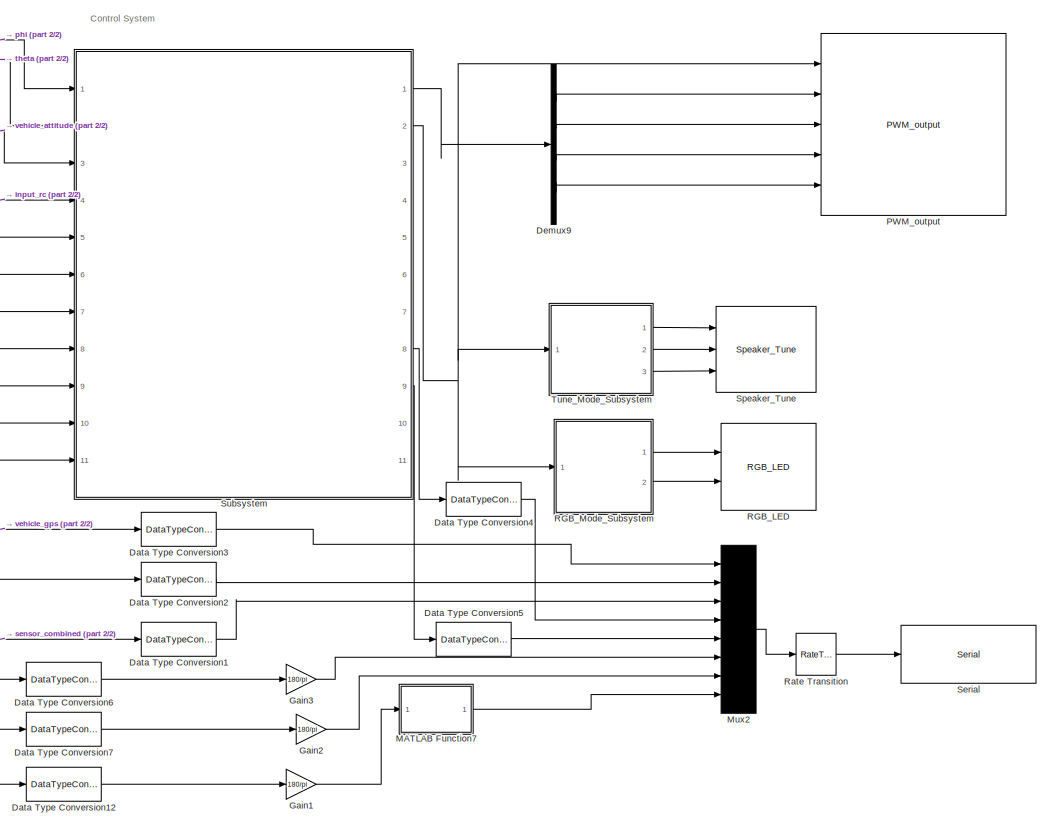
[diagram: root canvas - part 1/2, center side, full height]
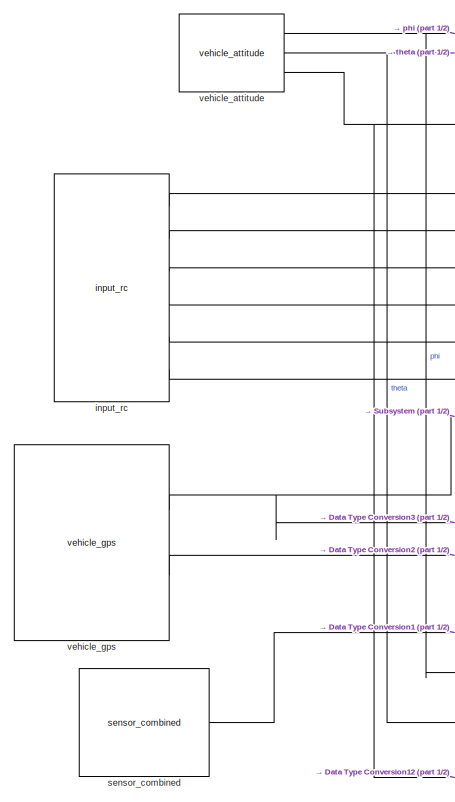
[diagram: root canvas - part 2/2, left side, full height]
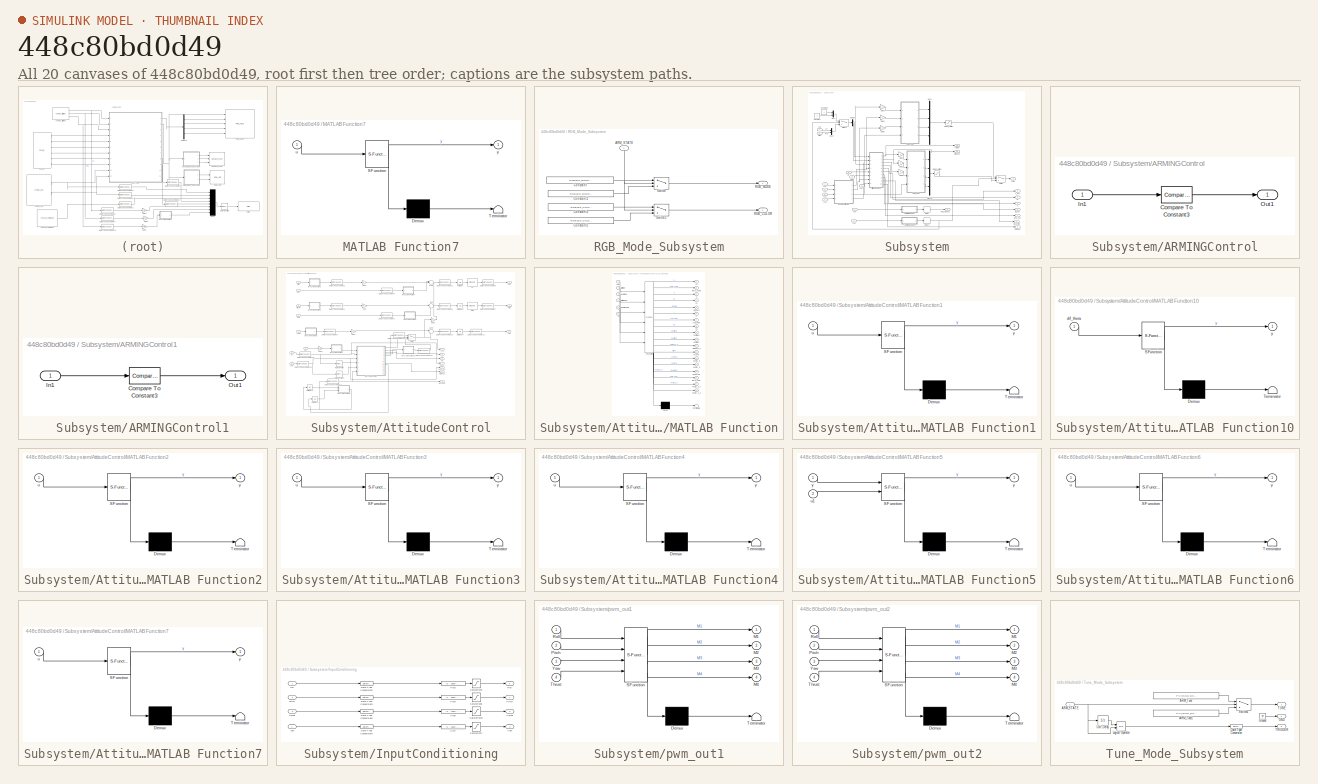
[diagram: thumbnail index - all 20 canvases of the model, root first then tree order]
MODEL slx_448c80bd0d49
KIND model
CONFIG AbsTol = auto
CONFIG EnableMultiTasking = off
CONFIG FixedStep = auto
CONFIG MaxStep = auto
CONFIG MinStep = auto
CONFIG RelTol = 1e-3
CONFIG SampleTimeConstraint = Unconstrained
CONFIG Solver = VariableStepAuto
CONFIG SolverName = VariableStepAuto
CONFIG StartTime = 0.0
CONFIG StopTime = 10.0
BLOCK [DataTypeConversion] Data Type Conversion1
  OutDataTypeStr = single
  RndMeth = Floor
  SaturateOnIntegerOverflow = off
BLOCK [DataTypeConversion] Data Type Conversion12
  OutDataTypeStr = single
  RndMeth = Floor
  SaturateOnIntegerOverflow = off
BLOCK [DataTypeConversion] Data Type Conversion2
  OutDataTypeStr = single
  RndMeth = Floor
  SaturateOnIntegerOverflow = off
BLOCK [DataTypeConversion] Data Type Conversion3
  OutDataTypeStr = single
  RndMeth = Floor
  SaturateOnIntegerOverflow = off
BLOCK [DataTypeConversion] Data Type Conversion4
  OutDataTypeStr = single
  RndMeth = Floor
  SaturateOnIntegerOverflow = off
BLOCK [DataTypeConversion] Data Type Conversion5
  OutDataTypeStr = single
  RndMeth = Floor
  SaturateOnIntegerOverflow = off
BLOCK [DataTypeConversion] Data Type Conversion6
  OutDataTypeStr = single
  RndMeth = Floor
  SaturateOnIntegerOverflow = off
BLOCK [DataTypeConversion] Data Type Conversion7
  OutDataTypeStr = single
  RndMeth = Floor
  SaturateOnIntegerOverflow = off
BLOCK [Demux] Demux9
  DisplayOption = bar
  Ports = [1, 4]
BLOCK [Gain] Gain1
  Gain = 180/pi
  OutDataTypeStr = Inherit: Inherit via internal rule
  ParamDataTypeStr = Inherit: Inherit via internal rule
  SaturateOnIntegerOverflow = off
BLOCK [Gain] Gain2
  Gain = 180/pi
  OutDataTypeStr = Inherit: Inherit via internal rule
  ParamDataTypeStr = Inherit: Inherit via internal rule
  SaturateOnIntegerOverflow = off
BLOCK [Gain] Gain3
  Gain = 180/pi
  OutDataTypeStr = Inherit: Inherit via internal rule
  ParamDataTypeStr = Inherit: Inherit via internal rule
  SaturateOnIntegerOverflow = off
BLOCK [SubSystem] MATLAB Function7
  ErrorFcn = Stateflow.Translate.translate
  PermitHierarchicalResolution = ExplicitOnly
  Ports = [1, 1]
  RequestExecContextInheritance = off
  SFBlockType = MATLAB Function
  TreatAsAtomicUnit = on
  Variant = off
BLOCK [Demux] MATLAB Function7/ Demux 
  Outputs = 1
  Ports = [1, 1]
BLOCK [S-Function] MATLAB Function7/ SFunction 
  EnableBusSupport = on
  FunctionName = sf_sfun
  PortCounts = [1 2]
  Ports = [1, 2]
  SFcnIsStateOwnerBlock = off
  SFunctionDeploymentMode = off
  Tag = Stateflow S-Function untitled 9
BLOCK [Terminator] MATLAB Function7/ Terminator 
BLOCK [Inport] MATLAB Function7/u
  IconDisplay = Port number
BLOCK [Outport] MATLAB Function7/y
  IconDisplay = Port number
BLOCK [Mux] Mux2
  DisplayOption = bar
  Inputs = 8
  Ports = [8, 1]
BLOCK [Reference] PWM_output  REF=pixhawk_slib_sensors_actuators/PWM_output
  Ports = [5]
  SourceBlock = pixhawk_slib_sensors_actuators/PWM_output
  SourceType = PX4_Output_PWM
BLOCK [Reference] RGB_LED  REF=pixhawk_slib_sensors_actuators/RGB_LED
  Ports = [2]
  SourceBlock = pixhawk_slib_sensors_actuators/RGB_LED
  SourceType = PX4_RGBLED - controls the mode and color of the Pixhawk RGB LED
BLOCK [SubSystem] RGB_Mode_Subsystem
  Ports = [1, 2]
  RequestExecContextInheritance = off
  Variant = off
BLOCK [Inport] RGB_Mode_Subsystem/ARM_STATE
  IconDisplay = Port number
BLOCK [Constant] RGB_Mode_Subsystem/Constant
  OutDataTypeStr = Enum: RGBLED_MODE_ENUM
  Value = RGBLED_MODE_ENUM.MODE_BLINK_FAST
BLOCK [Constant] RGB_Mode_Subsystem/Constant1
  OutDataTypeStr = Enum: RGBLED_MODE_ENUM
  Value = RGBLED_MODE_ENUM.MODE_BREATHE
BLOCK [Constant] RGB_Mode_Subsystem/Constant2
  OutDataTypeStr = Enum: RGBLED_COLOR_ENUM
  Value = RGBLED_COLOR_ENUM.COLOR_GREEN
BLOCK [Constant] RGB_Mode_Subsystem/Constant3
  OutDataTypeStr = Enum: RGBLED_COLOR_ENUM
  Value = RGBLED_COLOR_ENUM.COLOR_RED
BLOCK [Outport] RGB_Mode_Subsystem/RGB_COLOR
  IconDisplay = Port number
  Port = 2
BLOCK [Outport] RGB_Mode_Subsystem/RGB_MODE
  IconDisplay = Port number
BLOCK [Switch] RGB_Mode_Subsystem/Switch
  Criteria = u2 ~= 0
  InputSameDT = off
  SampleTime = 1/2
  SaturateOnIntegerOverflow = off
  Threshold = 1500
BLOCK [Switch] RGB_Mode_Subsystem/Switch1
  Criteria = u2 ~= 0
  InputSameDT = off
  SampleTime = 1/2
  SaturateOnIntegerOverflow = off
  Threshold = 1500
BLOCK [RateTransition] Rate Transition
  OutPortSampleTime = 0.5
BLOCK [Reference] Serial  REF=pixhawk_slib_ADC_serial/Serial
  Ports = [1]
  SourceBlock = pixhawk_slib_ADC_serial/Serial
  SourceType = codertarget.pixhawk.blocks.SerialCOM
BLOCK [Reference] Speaker_Tune  REF=pixhawk_slib_sensors_actuators/Speaker_Tune
  Ports = [3]
  SourceBlock = pixhawk_slib_sensors_actuators/Speaker_Tune
  SourceType = PX4_Play_Tune - Plays a predefined tune or one based on a "string"
BLOCK [SubSystem] Subsystem
  Ports = [11, 11]
  RequestExecContextInheritance = off
  Variant = off
BLOCK [SubSystem] Subsystem/ARMINGControl
  Ports = [1, 1]
  RequestExecContextInheritance = off
  Variant = off
BLOCK [Reference] Subsystem/ARMINGControl/Compare To Constant3  REF=simulink/Logic and Bit
Operations/Compare
To Constant
  Ports = [1, 1]
  SourceBlock = simulink/Logic and Bit\nOperations/Compare\nTo Constant
  SourceType = Compare To Constant
BLOCK [Inport] Subsystem/ARMINGControl/In1
  IconDisplay = Port number
BLOCK [Outport] Subsystem/ARMINGControl/Out1
  IconDisplay = Port number
BLOCK [SubSystem] Subsystem/ARMINGControl1
  Ports = [1, 1]
  RequestExecContextInheritance = off
  Variant = off
BLOCK [Reference] Subsystem/ARMINGControl1/Compare To Constant3  REF=simulink/Logic and Bit
Operations/Compare
To Constant
  Ports = [1, 1]
  SourceBlock = simulink/Logic and Bit\nOperations/Compare\nTo Constant
  SourceType = Compare To Constant
BLOCK [Inport] Subsystem/ARMINGControl1/In1
  IconDisplay = Port number
BLOCK [Outport] Subsystem/ARMINGControl1/Out1
  IconDisplay = Port number
BLOCK [Outport] Subsystem/ARM_Control
  IconDisplay = Port number
  Port = 2
  PortDimensions = 1
  SamplingMode = Sample based
  SignalType = real
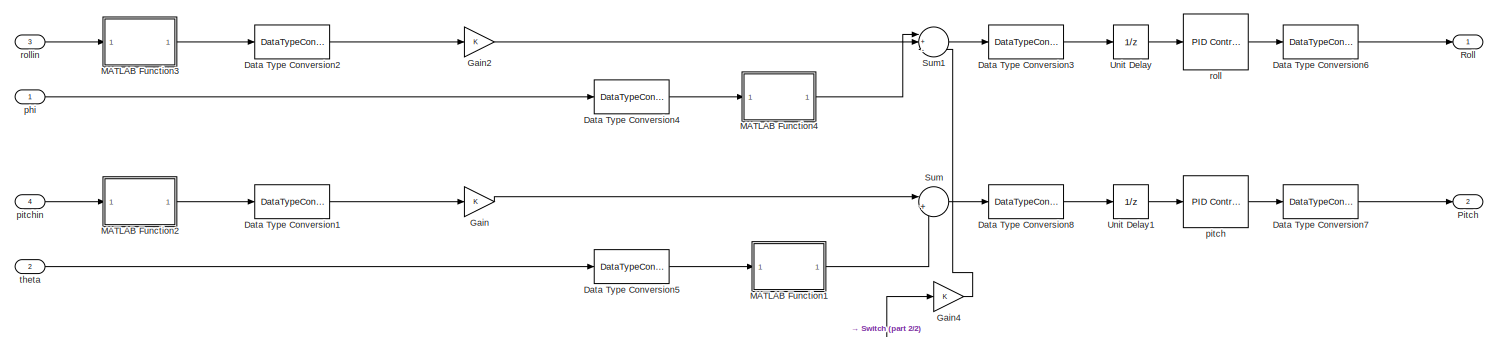
[diagram: Subsystem/AttitudeControl - part 1/2, full width, top band]
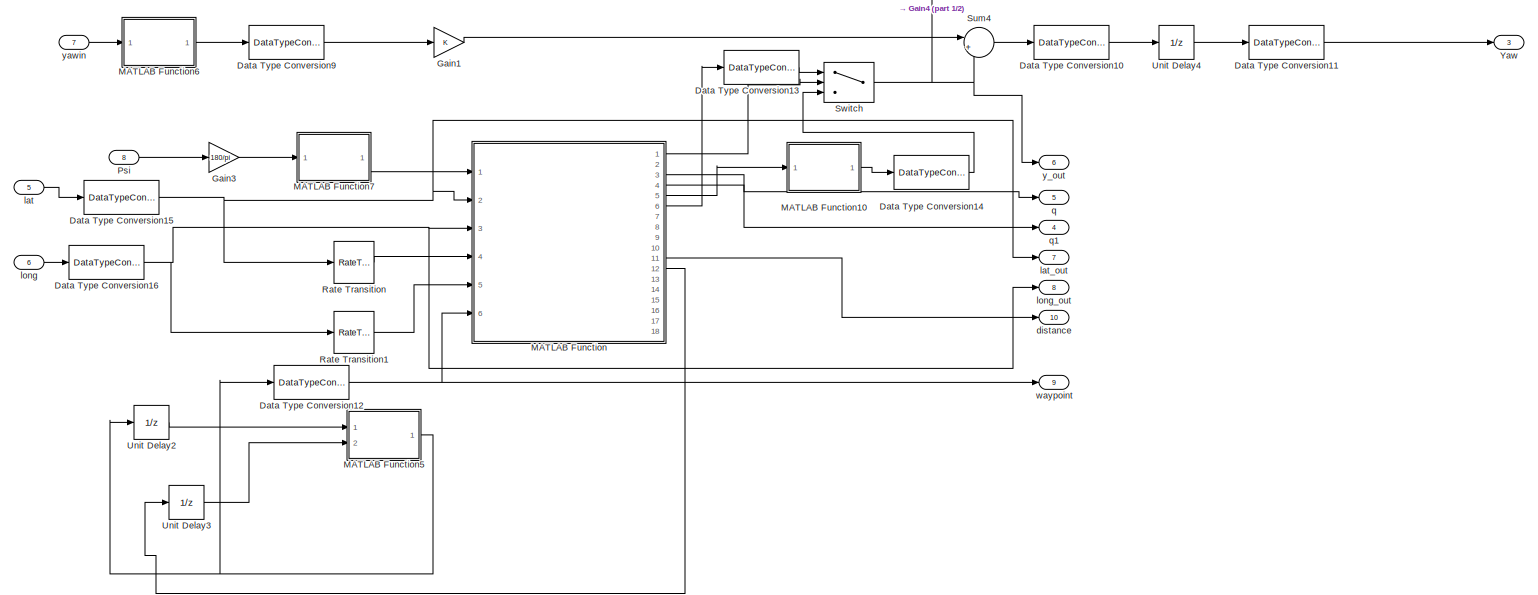
[diagram: Subsystem/AttitudeControl - part 2/2, full width, bottom band]
BLOCK [SubSystem] Subsystem/AttitudeControl
  Ports = [8, 10]
  RequestExecContextInheritance = off
  Variant = off
BLOCK [DataTypeConversion] Subsystem/AttitudeControl/Data Type Conversion1
  OutDataTypeStr = single
  RndMeth = Floor
  SaturateOnIntegerOverflow = off
BLOCK [DataTypeConversion] Subsystem/AttitudeControl/Data Type Conversion10
  OutDataTypeStr = double
  RndMeth = Floor
  SaturateOnIntegerOverflow = off
BLOCK [DataTypeConversion] Subsystem/AttitudeControl/Data Type Conversion11
  OutDataTypeStr = single
  RndMeth = Floor
  SaturateOnIntegerOverflow = off
BLOCK [DataTypeConversion] Subsystem/AttitudeControl/Data Type Conversion12
  OutDataTypeStr = single
  RndMeth = Floor
  SaturateOnIntegerOverflow = off
BLOCK [DataTypeConversion] Subsystem/AttitudeControl/Data Type Conversion13
  OutDataTypeStr = single
  RndMeth = Floor
  SaturateOnIntegerOverflow = off
BLOCK [DataTypeConversion] Subsystem/AttitudeControl/Data Type Conversion14
  OutDataTypeStr = single
  RndMeth = Floor
  SaturateOnIntegerOverflow = off
BLOCK [DataTypeConversion] Subsystem/AttitudeControl/Data Type Conversion15
  OutDataTypeStr = single
  RndMeth = Floor
  SaturateOnIntegerOverflow = off
BLOCK [DataTypeConversion] Subsystem/AttitudeControl/Data Type Conversion16
  OutDataTypeStr = single
  RndMeth = Floor
  SaturateOnIntegerOverflow = off
BLOCK [DataTypeConversion] Subsystem/AttitudeControl/Data Type Conversion2
  OutDataTypeStr = single
  RndMeth = Floor
  SaturateOnIntegerOverflow = off
BLOCK [DataTypeConversion] Subsystem/AttitudeControl/Data Type Conversion3
  OutDataTypeStr = double
  RndMeth = Floor
  SaturateOnIntegerOverflow = off
BLOCK [DataTypeConversion] Subsystem/AttitudeControl/Data Type Conversion4
  OutDataTypeStr = single
  RndMeth = Floor
  SaturateOnIntegerOverflow = off
BLOCK [DataTypeConversion] Subsystem/AttitudeControl/Data Type Conversion5
  OutDataTypeStr = single
  RndMeth = Floor
  SaturateOnIntegerOverflow = off
BLOCK [DataTypeConversion] Subsystem/AttitudeControl/Data Type Conversion6
  OutDataTypeStr = single
  RndMeth = Floor
  SaturateOnIntegerOverflow = off
BLOCK [DataTypeConversion] Subsystem/AttitudeControl/Data Type Conversion7
  OutDataTypeStr = single
  RndMeth = Floor
  SaturateOnIntegerOverflow = off
BLOCK [DataTypeConversion] Subsystem/AttitudeControl/Data Type Conversion8
  OutDataTypeStr = double
  RndMeth = Floor
  SaturateOnIntegerOverflow = off
BLOCK [DataTypeConversion] Subsystem/AttitudeControl/Data Type Conversion9
  OutDataTypeStr = single
  RndMeth = Floor
  SaturateOnIntegerOverflow = off
BLOCK [Gain] Subsystem/AttitudeControl/Gain
  OutDataTypeStr = Inherit: Inherit via internal rule
  ParamDataTypeStr = Inherit: Inherit via internal rule
  SaturateOnIntegerOverflow = off
BLOCK [Gain] Subsystem/AttitudeControl/Gain1
  OutDataTypeStr = Inherit: Inherit via internal rule
  ParamDataTypeStr = Inherit: Inherit via internal rule
  SaturateOnIntegerOverflow = off
BLOCK [Gain] Subsystem/AttitudeControl/Gain2
  OutDataTypeStr = Inherit: Inherit via internal rule
  ParamDataTypeStr = Inherit: Inherit via internal rule
  SaturateOnIntegerOverflow = off
BLOCK [Gain] Subsystem/AttitudeControl/Gain3
  Gain = 180/pi
  OutDataTypeStr = Inherit: Inherit via internal rule
  ParamDataTypeStr = Inherit: Inherit via internal rule
  SaturateOnIntegerOverflow = off
BLOCK [Gain] Subsystem/AttitudeControl/Gain4
  OutDataTypeStr = Inherit: Inherit via internal rule
  ParamDataTypeStr = Inherit: Inherit via internal rule
  SaturateOnIntegerOverflow = off
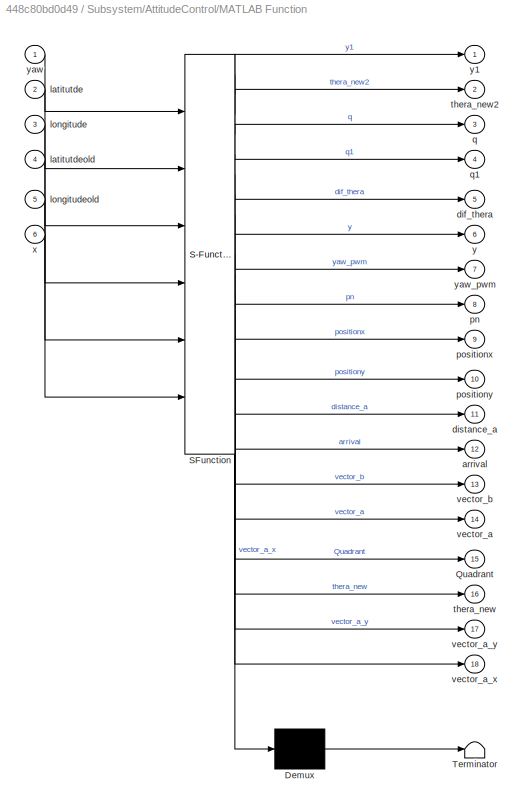
BLOCK [SubSystem] Subsystem/AttitudeControl/MATLAB Function
  ErrorFcn = Stateflow.Translate.translate
  PermitHierarchicalResolution = ExplicitOnly
  Ports = [6, 18]
  RequestExecContextInheritance = off
  SFBlockType = MATLAB Function
  TreatAsAtomicUnit = on
  Variant = off
BLOCK [Demux] Subsystem/AttitudeControl/MATLAB Function/ Demux 
  Outputs = 1
  Ports = [1, 1]
BLOCK [S-Function] Subsystem/AttitudeControl/MATLAB Function/ SFunction 
  EnableBusSupport = on
  FunctionName = sf_sfun
  PortCounts = [6 19]
  Ports = [6, 19]
  SFcnIsStateOwnerBlock = off
  SFunctionDeploymentMode = off
  Tag = Stateflow S-Function untitled 2
BLOCK [Terminator] Subsystem/AttitudeControl/MATLAB Function/ Terminator 
BLOCK [Outport] Subsystem/AttitudeControl/MATLAB Function/Quadrant
  IconDisplay = Port number
  Port = 15
BLOCK [Outport] Subsystem/AttitudeControl/MATLAB Function/arrival
  IconDisplay = Port number
  Port = 12
BLOCK [Outport] Subsystem/AttitudeControl/MATLAB Function/dif_thera
  IconDisplay = Port number
  Port = 5
BLOCK [Outport] Subsystem/AttitudeControl/MATLAB Function/distance_a
  IconDisplay = Port number
  Port = 11
BLOCK [Inport] Subsystem/AttitudeControl/MATLAB Function/latitutde
  IconDisplay = Port number
  Port = 2
BLOCK [Inport] Subsystem/AttitudeControl/MATLAB Function/latitutdeold
  IconDisplay = Port number
  Port = 4
BLOCK [Inport] Subsystem/AttitudeControl/MATLAB Function/longitude
  IconDisplay = Port number
  Port = 3
BLOCK [Inport] Subsystem/AttitudeControl/MATLAB Function/longitudeold
  IconDisplay = Port number
  Port = 5
BLOCK [Outport] Subsystem/AttitudeControl/MATLAB Function/pn
  IconDisplay = Port number
  Port = 8
BLOCK [Outport] Subsystem/AttitudeControl/MATLAB Function/positionx
  IconDisplay = Port number
  Port = 9
BLOCK [Outport] Subsystem/AttitudeControl/MATLAB Function/positiony
  IconDisplay = Port number
  Port = 10
BLOCK [Outport] Subsystem/AttitudeControl/MATLAB Function/q
  IconDisplay = Port number
  Port = 3
BLOCK [Outport] Subsystem/AttitudeControl/MATLAB Function/q1
  IconDisplay = Port number
  Port = 4
BLOCK [Outport] Subsystem/AttitudeControl/MATLAB Function/thera_new
  IconDisplay = Port number
  Port = 16
BLOCK [Outport] Subsystem/AttitudeControl/MATLAB Function/thera_new2
  IconDisplay = Port number
  Port = 2
BLOCK [Outport] Subsystem/AttitudeControl/MATLAB Function/vector_a
  IconDisplay = Port number
  Port = 14
BLOCK [Outport] Subsystem/AttitudeControl/MATLAB Function/vector_a_x
  IconDisplay = Port number
  Port = 18
BLOCK [Outport] Subsystem/AttitudeControl/MATLAB Function/vector_a_y
  IconDisplay = Port number
  Port = 17
BLOCK [Outport] Subsystem/AttitudeControl/MATLAB Function/vector_b
  IconDisplay = Port number
  Port = 13
BLOCK [Inport] Subsystem/AttitudeControl/MATLAB Function/x
  IconDisplay = Port number
  Port = 6
BLOCK [Outport] Subsystem/AttitudeControl/MATLAB Function/y
  IconDisplay = Port number
  Port = 6
BLOCK [Outport] Subsystem/AttitudeControl/MATLAB Function/y1
  IconDisplay = Port number
BLOCK [Inport] Subsystem/AttitudeControl/MATLAB Function/yaw
  IconDisplay = Port number
BLOCK [Outport] Subsystem/AttitudeControl/MATLAB Function/yaw_pwm
  IconDisplay = Port number
  Port = 7
BLOCK [SubSystem] Subsystem/AttitudeControl/MATLAB Function1
  ErrorFcn = Stateflow.Translate.translate
  PermitHierarchicalResolution = ExplicitOnly
  Ports = [1, 1]
  RequestExecContextInheritance = off
  SFBlockType = MATLAB Function
  TreatAsAtomicUnit = on
  Variant = off
BLOCK [Demux] Subsystem/AttitudeControl/MATLAB Function1/ Demux 
  Outputs = 1
  Ports = [1, 1]
BLOCK [S-Function] Subsystem/AttitudeControl/MATLAB Function1/ SFunction 
  EnableBusSupport = on
  FunctionName = sf_sfun
  PortCounts = [1 2]
  Ports = [1, 2]
  SFcnIsStateOwnerBlock = off
  SFunctionDeploymentMode = off
  Tag = Stateflow S-Function untitled 1
BLOCK [Terminator] Subsystem/AttitudeControl/MATLAB Function1/ Terminator 
BLOCK [Inport] Subsystem/AttitudeControl/MATLAB Function1/u
  IconDisplay = Port number
BLOCK [Outport] Subsystem/AttitudeControl/MATLAB Function1/y
  IconDisplay = Port number
BLOCK [SubSystem] Subsystem/AttitudeControl/MATLAB Function10
  ErrorFcn = Stateflow.Translate.translate
  PermitHierarchicalResolution = ExplicitOnly
  Ports = [1, 1]
  RequestExecContextInheritance = off
  SFBlockType = MATLAB Function
  TreatAsAtomicUnit = on
  Variant = off
BLOCK [Demux] Subsystem/AttitudeControl/MATLAB Function10/ Demux 
  Outputs = 1
  Ports = [1, 1]
BLOCK [S-Function] Subsystem/AttitudeControl/MATLAB Function10/ SFunction 
  EnableBusSupport = on
  FunctionName = sf_sfun
  PortCounts = [1 2]
  Ports = [1, 2]
  SFcnIsStateOwnerBlock = off
  SFunctionDeploymentMode = off
  Tag = Stateflow S-Function untitled 13
BLOCK [Terminator] Subsystem/AttitudeControl/MATLAB Function10/ Terminator 
BLOCK [Inport] Subsystem/AttitudeControl/MATLAB Function10/dif_thera
  IconDisplay = Port number
BLOCK [Outport] Subsystem/AttitudeControl/MATLAB Function10/y
  IconDisplay = Port number
BLOCK [SubSystem] Subsystem/AttitudeControl/MATLAB Function2
  ErrorFcn = Stateflow.Translate.translate
  PermitHierarchicalResolution = ExplicitOnly
  Ports = [1, 1]
  RequestExecContextInheritance = off
  SFBlockType = MATLAB Function
  TreatAsAtomicUnit = on
  Variant = off
BLOCK [Demux] Subsystem/AttitudeControl/MATLAB Function2/ Demux 
  Outputs = 1
  Ports = [1, 1]
BLOCK [S-Function] Subsystem/AttitudeControl/MATLAB Function2/ SFunction 
  EnableBusSupport = on
  FunctionName = sf_sfun
  PortCounts = [1 2]
  Ports = [1, 2]
  SFcnIsStateOwnerBlock = off
  SFunctionDeploymentMode = off
  Tag = Stateflow S-Function untitled 5
BLOCK [Terminator] Subsystem/AttitudeControl/MATLAB Function2/ Terminator 
BLOCK [Inport] Subsystem/AttitudeControl/MATLAB Function2/u
  IconDisplay = Port number
BLOCK [Outport] Subsystem/AttitudeControl/MATLAB Function2/y
  IconDisplay = Port number
BLOCK [SubSystem] Subsystem/AttitudeControl/MATLAB Function3
  ErrorFcn = Stateflow.Translate.translate
  PermitHierarchicalResolution = ExplicitOnly
  Ports = [1, 1]
  RequestExecContextInheritance = off
  SFBlockType = MATLAB Function
  TreatAsAtomicUnit = on
  Variant = off
BLOCK [Demux] Subsystem/AttitudeControl/MATLAB Function3/ Demux 
  Outputs = 1
  Ports = [1, 1]
BLOCK [S-Function] Subsystem/AttitudeControl/MATLAB Function3/ SFunction 
  EnableBusSupport = on
  FunctionName = sf_sfun
  PortCounts = [1 2]
  Ports = [1, 2]
  SFcnIsStateOwnerBlock = off
  SFunctionDeploymentMode = off
  Tag = Stateflow S-Function untitled 3
BLOCK [Terminator] Subsystem/AttitudeControl/MATLAB Function3/ Terminator 
BLOCK [Inport] Subsystem/AttitudeControl/MATLAB Function3/u
  IconDisplay = Port number
BLOCK [Outport] Subsystem/AttitudeControl/MATLAB Function3/y
  IconDisplay = Port number
BLOCK [SubSystem] Subsystem/AttitudeControl/MATLAB Function4
  ErrorFcn = Stateflow.Translate.translate
  PermitHierarchicalResolution = ExplicitOnly
  Ports = [1, 1]
  RequestExecContextInheritance = off
  SFBlockType = MATLAB Function
  TreatAsAtomicUnit = on
  Variant = off
BLOCK [Demux] Subsystem/AttitudeControl/MATLAB Function4/ Demux 
  Outputs = 1
  Ports = [1, 1]
BLOCK [S-Function] Subsystem/AttitudeControl/MATLAB Function4/ SFunction 
  EnableBusSupport = on
  FunctionName = sf_sfun
  PortCounts = [1 2]
  Ports = [1, 2]
  SFcnIsStateOwnerBlock = off
  SFunctionDeploymentMode = off
  Tag = Stateflow S-Function untitled 6
BLOCK [Terminator] Subsystem/AttitudeControl/MATLAB Function4/ Terminator 
BLOCK [Inport] Subsystem/AttitudeControl/MATLAB Function4/u
  IconDisplay = Port number
BLOCK [Outport] Subsystem/AttitudeControl/MATLAB Function4/y
  IconDisplay = Port number
BLOCK [SubSystem] Subsystem/AttitudeControl/MATLAB Function5
  ErrorFcn = Stateflow.Translate.translate
  PermitHierarchicalResolution = ExplicitOnly
  Ports = [2, 1]
  RequestExecContextInheritance = off
  SFBlockType = MATLAB Function
  TreatAsAtomicUnit = on
  Variant = off
BLOCK [Demux] Subsystem/AttitudeControl/MATLAB Function5/ Demux 
  Outputs = 1
  Ports = [1, 1]
BLOCK [S-Function] Subsystem/AttitudeControl/MATLAB Function5/ SFunction 
  EnableBusSupport = on
  FunctionName = sf_sfun
  PortCounts = [2 2]
  Ports = [2, 2]
  SFcnIsStateOwnerBlock = off
  SFunctionDeploymentMode = off
  Tag = Stateflow S-Function untitled 7
BLOCK [Terminator] Subsystem/AttitudeControl/MATLAB Function5/ Terminator 
BLOCK [Inport] Subsystem/AttitudeControl/MATLAB Function5/u1
  IconDisplay = Port number
  Port = 2
BLOCK [Outport] Subsystem/AttitudeControl/MATLAB Function5/y
  IconDisplay = Port number
BLOCK [Inport] Subsystem/AttitudeControl/MATLAB Function5/y 
  IconDisplay = Port number
BLOCK [SubSystem] Subsystem/AttitudeControl/MATLAB Function6
  ErrorFcn = Stateflow.Translate.translate
  PermitHierarchicalResolution = ExplicitOnly
  Ports = [1, 1]
  RequestExecContextInheritance = off
  SFBlockType = MATLAB Function
  TreatAsAtomicUnit = on
  Variant = off
BLOCK [Demux] Subsystem/AttitudeControl/MATLAB Function6/ Demux 
  Outputs = 1
  Ports = [1, 1]
BLOCK [S-Function] Subsystem/AttitudeControl/MATLAB Function6/ SFunction 
  EnableBusSupport = on
  FunctionName = sf_sfun
  PortCounts = [1 2]
  Ports = [1, 2]
  SFcnIsStateOwnerBlock = off
  SFunctionDeploymentMode = off
  Tag = Stateflow S-Function untitled 8
BLOCK [Terminator] Subsystem/AttitudeControl/MATLAB Function6/ Terminator 
BLOCK [Inport] Subsystem/AttitudeControl/MATLAB Function6/u
  IconDisplay = Port number
BLOCK [Outport] Subsystem/AttitudeControl/MATLAB Function6/y
  IconDisplay = Port number
BLOCK [SubSystem] Subsystem/AttitudeControl/MATLAB Function7
  ErrorFcn = Stateflow.Translate.translate
  PermitHierarchicalResolution = ExplicitOnly
  Ports = [1, 1]
  RequestExecContextInheritance = off
  SFBlockType = MATLAB Function
  TreatAsAtomicUnit = on
  Variant = off
BLOCK [Demux] Subsystem/AttitudeControl/MATLAB Function7/ Demux 
  Outputs = 1
  Ports = [1, 1]
BLOCK [S-Function] Subsystem/AttitudeControl/MATLAB Function7/ SFunction 
  EnableBusSupport = on
  FunctionName = sf_sfun
  PortCounts = [1 2]
  Ports = [1, 2]
  SFcnIsStateOwnerBlock = off
  SFunctionDeploymentMode = off
  Tag = Stateflow S-Function untitled 4
BLOCK [Terminator] Subsystem/AttitudeControl/MATLAB Function7/ Terminator 
BLOCK [Inport] Subsystem/AttitudeControl/MATLAB Function7/u
  IconDisplay = Port number
BLOCK [Outport] Subsystem/AttitudeControl/MATLAB Function7/y
  IconDisplay = Port number
BLOCK [Outport] Subsystem/AttitudeControl/Pitch
  IconDisplay = Port number
  Port = 2
BLOCK [Inport] Subsystem/AttitudeControl/Psi
  IconDisplay = Port number
  OutDataTypeStr = single
  Port = 8
BLOCK [RateTransition] Subsystem/AttitudeControl/Rate Transition
  OutPortSampleTime = 20
BLOCK [RateTransition] Subsystem/AttitudeControl/Rate Transition1
  OutPortSampleTime = 20
BLOCK [Outport] Subsystem/AttitudeControl/Roll
  IconDisplay = Port number
BLOCK [Sum] Subsystem/AttitudeControl/Sum
  IconShape = round
  InputSameDT = off
  Inputs = |+-
  OutDataTypeStr = Inherit: Inherit via internal rule
  Ports = [2, 1]
  SaturateOnIntegerOverflow = off
BLOCK [Sum] Subsystem/AttitudeControl/Sum1
  IconShape = round
  InputSameDT = off
  Inputs = |+-+
  OutDataTypeStr = Inherit: Inherit via internal rule
  Ports = [3, 1]
  SaturateOnIntegerOverflow = off
BLOCK [Sum] Subsystem/AttitudeControl/Sum4
  IconShape = round
  InputSameDT = off
  Inputs = |+-
  OutDataTypeStr = Inherit: Inherit via internal rule
  Ports = [2, 1]
  SaturateOnIntegerOverflow = off
BLOCK [Switch] Subsystem/AttitudeControl/Switch
  Criteria = u2 > Threshold
  InputSameDT = off
  SaturateOnIntegerOverflow = off
BLOCK [UnitDelay] Subsystem/AttitudeControl/Unit Delay
  InputProcessing = Elements as channels (sample based)
  SampleTime = 0.1
BLOCK [UnitDelay] Subsystem/AttitudeControl/Unit Delay1
  InputProcessing = Elements as channels (sample based)
  SampleTime = 0.1
BLOCK [UnitDelay] Subsystem/AttitudeControl/Unit Delay2
  InitialCondition = 1
  InputProcessing = Elements as channels (sample based)
  SampleTime = -1
BLOCK [UnitDelay] Subsystem/AttitudeControl/Unit Delay3
  InputProcessing = Elements as channels (sample based)
  SampleTime = 0.1
BLOCK [UnitDelay] Subsystem/AttitudeControl/Unit Delay4
  InputProcessing = Elements as channels (sample based)
  SampleTime = 0.1
BLOCK [Outport] Subsystem/AttitudeControl/Yaw
  IconDisplay = Port number
  Port = 3
BLOCK [Outport] Subsystem/AttitudeControl/distance
  IconDisplay = Port number
  Port = 10
BLOCK [Inport] Subsystem/AttitudeControl/lat
  IconDisplay = Port number
  Port = 5
BLOCK [Outport] Subsystem/AttitudeControl/lat_out
  IconDisplay = Port number
  Port = 7
BLOCK [Inport] Subsystem/AttitudeControl/long
  IconDisplay = Port number
  Port = 6
BLOCK [Outport] Subsystem/AttitudeControl/long_out
  IconDisplay = Port number
  Port = 8
BLOCK [Inport] Subsystem/AttitudeControl/phi
  IconDisplay = Port number
BLOCK [Reference] Subsystem/AttitudeControl/pitch  REF=simulink/Continuous/PID Controller
  Ports = [1, 1]
  SourceBlock = simulink/Continuous/PID Controller
  SourceType = PID 1dof
BLOCK [Inport] Subsystem/AttitudeControl/pitchin
  IconDisplay = Port number
  Port = 4
BLOCK [Outport] Subsystem/AttitudeControl/q
  IconDisplay = Port number
  Port = 5
BLOCK [Outport] Subsystem/AttitudeControl/q1
  IconDisplay = Port number
  Port = 4
BLOCK [Reference] Subsystem/AttitudeControl/roll  REF=simulink/Continuous/PID Controller
  Ports = [1, 1]
  SourceBlock = simulink/Continuous/PID Controller
  SourceType = PID 1dof
BLOCK [Inport] Subsystem/AttitudeControl/rollin
  IconDisplay = Port number
  Port = 3
BLOCK [Inport] Subsystem/AttitudeControl/theta
  IconDisplay = Port number
  Port = 2
BLOCK [Outport] Subsystem/AttitudeControl/waypoint
  IconDisplay = Port number
  Port = 9
BLOCK [Outport] Subsystem/AttitudeControl/y_out
  IconDisplay = Port number
  Port = 6
BLOCK [Inport] Subsystem/AttitudeControl/yawin
  IconDisplay = Port number
  Port = 7
BLOCK [Constant] Subsystem/Constant
  OutDataTypeStr = single
  Value = 0
BLOCK [Constant] Subsystem/Constant1
  OutDataTypeStr = single
  Value = 0
BLOCK [Delay] Subsystem/Delay
  DelayLength = 1
  InitialCondition = 0
  InputPortMap = u0
  Ports = [1, 1]
BLOCK [Delay] Subsystem/Delay1
  DelayLength = 1
  InitialCondition = 0
  InputPortMap = u0
  Ports = [1, 1]
BLOCK [Demux] Subsystem/Demux
  DisplayOption = bar
  Outputs = 2
  Ports = [1, 2]
BLOCK [Gain] Subsystem/Gain1
  Gain = -1
  OutDataTypeStr = Inherit: Inherit via internal rule
  ParamDataTypeStr = Inherit: Inherit via internal rule
  SaturateOnIntegerOverflow = off
BLOCK [Gain] Subsystem/Gain2
  Gain = -1
  OutDataTypeStr = Inherit: Inherit via internal rule
  ParamDataTypeStr = Inherit: Inherit via internal rule
  SaturateOnIntegerOverflow = off
BLOCK [Gain] Subsystem/Gain3
  Gain = -1
  OutDataTypeStr = Inherit: Inherit via internal rule
  ParamDataTypeStr = Inherit: Inherit via internal rule
  SaturateOnIntegerOverflow = off
BLOCK [Gain] Subsystem/Gain4
  Gain = -1
  OutDataTypeStr = Inherit: Inherit via internal rule
  ParamDataTypeStr = Inherit: Inherit via internal rule
  SaturateOnIntegerOverflow = off
BLOCK [Gain] Subsystem/Gain5
  OutDataTypeStr = Inherit: Inherit via internal rule
  ParamDataTypeStr = Inherit: Inherit via internal rule
  SaturateOnIntegerOverflow = off
BLOCK [Gain] Subsystem/Gain6
  OutDataTypeStr = Inherit: Inherit via internal rule
  ParamDataTypeStr = Inherit: Inherit via internal rule
  SaturateOnIntegerOverflow = off
BLOCK [SubSystem] Subsystem/InputConditioning
  Ports = [4, 4]
  RequestExecContextInheritance = off
  Variant = off
BLOCK [DataTypeConversion] Subsystem/InputConditioning/Data Type Conversion2
  OutDataTypeStr = single
  RndMeth = Floor
  SaturateOnIntegerOverflow = off
BLOCK [DataTypeConversion] Subsystem/InputConditioning/Data Type Conversion3
  OutDataTypeStr = single
  RndMeth = Floor
  SaturateOnIntegerOverflow = off
BLOCK [DataTypeConversion] Subsystem/InputConditioning/Data Type Conversion4
  OutDataTypeStr = single
  RndMeth = Floor
  SaturateOnIntegerOverflow = off
BLOCK [DataTypeConversion] Subsystem/InputConditioning/Data Type Conversion5
  OutDataTypeStr = single
  RndMeth = Floor
  SaturateOnIntegerOverflow = off
BLOCK [Fcn] Subsystem/InputConditioning/Fcn2
  Expr = (u - 1500) / 400
BLOCK [Fcn] Subsystem/InputConditioning/Fcn5
  Expr = (u - 1500) / 400
BLOCK [Fcn] Subsystem/InputConditioning/Fcn6
  Expr = (u - 1100) / 800
BLOCK [Fcn] Subsystem/InputConditioning/Fcn7
  Expr = (u - 1500) / 400
BLOCK [Outport] Subsystem/InputConditioning/Pitch
  IconDisplay = Port number
BLOCK [Outport] Subsystem/InputConditioning/Roll
  IconDisplay = Port number
  Port = 4
BLOCK [Saturate] Subsystem/InputConditioning/Saturation10
  InputPortMap = u0
  LowerLimit = 0
  Ports = [1, 1]
  UpperLimit = 1
BLOCK [Saturate] Subsystem/InputConditioning/Saturation7
  InputPortMap = u0
  LowerLimit = -1
  Ports = [1, 1]
  UpperLimit = 1
BLOCK [Saturate] Subsystem/InputConditioning/Saturation8
  InputPortMap = u0
  LowerLimit = -1
  Ports = [1, 1]
  UpperLimit = 1
BLOCK [Saturate] Subsystem/InputConditioning/Saturation9
  InputPortMap = u0
  LowerLimit = -1
  Ports = [1, 1]
  UpperLimit = 1
BLOCK [Outport] Subsystem/InputConditioning/Thrust
  IconDisplay = Port number
  Port = 3
BLOCK [Outport] Subsystem/InputConditioning/Yaw
  IconDisplay = Port number
  Port = 2
BLOCK [Inport] Subsystem/InputConditioning/pitch
  IconDisplay = Port number
  Port = 2
BLOCK [Inport] Subsystem/InputConditioning/roll
  IconDisplay = Port number
BLOCK [Inport] Subsystem/InputConditioning/thrust
  IconDisplay = Port number
  Port = 3
BLOCK [Inport] Subsystem/InputConditioning/yaw
  IconDisplay = Port number
  Port = 4
BLOCK [Mux] Subsystem/Mux
  DisplayOption = bar
  Inputs = 2
  Ports = [2, 1]
BLOCK [Mux] Subsystem/Mux1
  DisplayOption = bar
  Ports = [4, 1]
BLOCK [Mux] Subsystem/Mux12
  DisplayOption = bar
  Ports = [4, 1]
BLOCK [Mux] Subsystem/Mux2
  DisplayOption = bar
  Inputs = 2
  Ports = [2, 1]
BLOCK [Saturate] Subsystem/Output_Limits1
  InputPortMap = u0
  LowerLimit = 1000
  Ports = [1, 1]
  UpperLimit = 2000
BLOCK [Saturate] Subsystem/Output_Limits2
  InputPortMap = u0
  LowerLimit = 1000
  Ports = [1, 1]
  UpperLimit = 2000
BLOCK [Outport] Subsystem/PWM
  IconDisplay = Port number
  PortDimensions = 4
  SamplingMode = Sample based
  SignalType = real
BLOCK [Switch] Subsystem/Switch
  Criteria = u2 > Threshold
  InputSameDT = off
  SaturateOnIntegerOverflow = off
BLOCK [Switch] Subsystem/Switch1
  Criteria = u2 > Threshold
  InputSameDT = off
  SaturateOnIntegerOverflow = off
BLOCK [Inport] Subsystem/ch1
  IconDisplay = Port number
  OutDataTypeStr = uint16
  Port = 3
  PortDimensions = 1
  SamplingMode = Sample based
  SignalType = real
BLOCK [Inport] Subsystem/ch2
  IconDisplay = Port number
  OutDataTypeStr = uint16
  Port = 4
  PortDimensions = 1
  SamplingMode = Sample based
  SignalType = real
BLOCK [Inport] Subsystem/ch3
  IconDisplay = Port number
  OutDataTypeStr = uint16
  Port = 5
  PortDimensions = 1
  SamplingMode = Sample based
  SignalType = real
BLOCK [Inport] Subsystem/ch4
  IconDisplay = Port number
  OutDataTypeStr = uint16
  Port = 6
  PortDimensions = 1
  SamplingMode = Sample based
  SignalType = real
BLOCK [Inport] Subsystem/ch5
  IconDisplay = Port number
  Interpolate = off
  OutDataTypeStr = uint16
  Port = 7
  PortDimensions = 1
  SamplingMode = Sample based
  SignalType = real
BLOCK [Inport] Subsystem/ch6
  IconDisplay = Port number
  Interpolate = off
  OutDataTypeStr = uint16
  Port = 8
  PortDimensions = 1
  SamplingMode = Sample based
  SignalType = real
BLOCK [Outport] Subsystem/distance
  IconDisplay = Port number
  Port = 9
  SamplingMode = Sample based
  SignalType = real
BLOCK [Inport] Subsystem/lat
  IconDisplay = Port number
  Interpolate = off
  OutDataTypeStr = int32
  Port = 9
  PortDimensions = 1
  SamplingMode = Sample based
  SignalType = real
BLOCK [Outport] Subsystem/lat_out
  IconDisplay = Port number
  Port = 6
  SamplingMode = Sample based
  SignalType = real
BLOCK [Inport] Subsystem/long
  IconDisplay = Port number
  Interpolate = off
  OutDataTypeStr = int32
  Port = 10
  PortDimensions = 1
  SamplingMode = Sample based
  SignalType = real
BLOCK [Outport] Subsystem/long_out
  IconDisplay = Port number
  Port = 7
  SamplingMode = Sample based
  SignalType = real
BLOCK [Inport] Subsystem/pitch
  IconDisplay = Port number
  OutDataTypeStr = single
  Port = 2
  PortDimensions = 1
  SamplingMode = Sample based
  SignalType = real
BLOCK [Outport] Subsystem/pitchout
  IconDisplay = Port number
  Port = 11
  SamplingMode = Sample based
  SignalType = real
BLOCK [SubSystem] Subsystem/pwm_out1
  ErrorFcn = Stateflow.Translate.translate
  PermitHierarchicalResolution = ExplicitOnly
  Ports = [4, 4]
  RequestExecContextInheritance = off
  SFBlockType = MATLAB Function
  SystemSampleTime = 0.004
  TreatAsAtomicUnit = on
  Variant = off
BLOCK [Demux] Subsystem/pwm_out1/ Demux 
  Outputs = 1
  Ports = [1, 1]
BLOCK [S-Function] Subsystem/pwm_out1/ SFunction 
  EnableBusSupport = on
  FunctionName = sf_sfun
  PortCounts = [4 5]
  Ports = [4, 5]
  SFcnIsStateOwnerBlock = off
  SFunctionDeploymentMode = off
  Tag = Stateflow S-Function untitled 10
BLOCK [Terminator] Subsystem/pwm_out1/ Terminator 
BLOCK [Outport] Subsystem/pwm_out1/M1
  IconDisplay = Port number
BLOCK [Outport] Subsystem/pwm_out1/M2
  IconDisplay = Port number
  Port = 2
BLOCK [Outport] Subsystem/pwm_out1/M3
  IconDisplay = Port number
  Port = 3
BLOCK [Outport] Subsystem/pwm_out1/M4
  IconDisplay = Port number
  Port = 4
BLOCK [Inport] Subsystem/pwm_out1/Pitch
  IconDisplay = Port number
  Port = 2
BLOCK [Inport] Subsystem/pwm_out1/Roll
  IconDisplay = Port number
BLOCK [Inport] Subsystem/pwm_out1/Thrust
  IconDisplay = Port number
  Port = 4
BLOCK [Inport] Subsystem/pwm_out1/Yaw
  IconDisplay = Port number
  Port = 3
BLOCK [SubSystem] Subsystem/pwm_out2
  ErrorFcn = Stateflow.Translate.translate
  PermitHierarchicalResolution = ExplicitOnly
  Ports = [4, 4]
  RequestExecContextInheritance = off
  SFBlockType = MATLAB Function
  SystemSampleTime = 0.004
  TreatAsAtomicUnit = on
  Variant = off
BLOCK [Demux] Subsystem/pwm_out2/ Demux 
  Outputs = 1
  Ports = [1, 1]
BLOCK [S-Function] Subsystem/pwm_out2/ SFunction 
  EnableBusSupport = on
  FunctionName = sf_sfun
  PortCounts = [4 5]
  Ports = [4, 5]
  SFcnIsStateOwnerBlock = off
  SFunctionDeploymentMode = off
  Tag = Stateflow S-Function untitled 11
BLOCK [Terminator] Subsystem/pwm_out2/ Terminator 
BLOCK [Outport] Subsystem/pwm_out2/M1
  IconDisplay = Port number
BLOCK [Outport] Subsystem/pwm_out2/M2
  IconDisplay = Port number
  Port = 2
BLOCK [Outport] Subsystem/pwm_out2/M3
  IconDisplay = Port number
  Port = 3
BLOCK [Outport] Subsystem/pwm_out2/M4
  IconDisplay = Port number
  Port = 4
BLOCK [Inport] Subsystem/pwm_out2/Pitch
  IconDisplay = Port number
  Port = 2
BLOCK [Inport] Subsystem/pwm_out2/Roll
  IconDisplay = Port number
BLOCK [Inport] Subsystem/pwm_out2/Thrust
  IconDisplay = Port number
  Port = 4
BLOCK [Inport] Subsystem/pwm_out2/Yaw
  IconDisplay = Port number
  Port = 3
BLOCK [Outport] Subsystem/q
  IconDisplay = Port number
  Port = 4
  SamplingMode = Sample based
  SignalType = real
BLOCK [Outport] Subsystem/q1
  IconDisplay = Port number
  Port = 3
  SamplingMode = Sample based
  SignalType = real
BLOCK [Inport] Subsystem/roll
  IconDisplay = Port number
  OutDataTypeStr = single
  PortDimensions = 1
  SamplingMode = Sample based
  SignalType = real
BLOCK [Outport] Subsystem/rollout
  IconDisplay = Port number
  Port = 10
  SamplingMode = Sample based
  SignalType = real
BLOCK [Outport] Subsystem/waypoint
  IconDisplay = Port number
  Port = 8
  SamplingMode = Sample based
  SignalType = real
BLOCK [Outport] Subsystem/y_out
  IconDisplay = Port number
  Port = 5
  SamplingMode = Sample based
  SignalType = real
BLOCK [Inport] Subsystem/yaw
  IconDisplay = Port number
  OutDataTypeStr = single
  Port = 11
  PortDimensions = 1
  SamplingMode = Sample based
  SignalType = real
BLOCK [SubSystem] Tune_Mode_Subsystem
  Ports = [1, 3]
  RequestExecContextInheritance = off
  Variant = off
BLOCK [Inport] Tune_Mode_Subsystem/ARM_STATE
  IconDisplay = Port number
BLOCK [Constant] Tune_Mode_Subsystem/ARM_Tune
  OutDataTypeStr = Enum: PX4_TUNE_ENUM
  Value = PX4_TUNE_ENUM.ARMING_WARNING_TUNE
BLOCK [Constant] Tune_Mode_Subsystem/ARM_Tune1
  OutDataTypeStr = Enum: PX4_TUNE_ENUM
  Value = PX4_TUNE_ENUM.NOTIFY_POSITIVE_TUNE
BLOCK [DataTypeConversion] Tune_Mode_Subsystem/Data Type Conversion
  OutDataTypeStr = uint8
  RndMeth = Floor
  SaturateOnIntegerOverflow = off
BLOCK [Outport] Tune_Mode_Subsystem/GND
  IconDisplay = Port number
  Port = 2
BLOCK [Ground] Tune_Mode_Subsystem/Ground
BLOCK [Logic] Tune_Mode_Subsystem/Logical Operator
  AllPortsSameDT = off
  IconShape = distinctive
  Operator = XOR
  OutDataTypeStr = boolean
  Ports = [2, 1]
BLOCK [Switch] Tune_Mode_Subsystem/Switch1
  Criteria = u2 ~= 0
  InputSameDT = off
  SaturateOnIntegerOverflow = off
  Threshold = 1500
BLOCK [Outport] Tune_Mode_Subsystem/TRIGGER
  IconDisplay = Port number
  Port = 3
BLOCK [Outport] Tune_Mode_Subsystem/TUNE
  IconDisplay = Port number
BLOCK [UnitDelay] Tune_Mode_Subsystem/Unit Delay
  InputProcessing = Elements as channels (sample based)
  SampleTime = -1
BLOCK [Reference] input_rc  REF=pixhawk_slib_sensors_actuators/input_rc
  Ports = [0, 6]
  SourceBlock = pixhawk_slib_sensors_actuators/input_rc
  SourceType = PX4_Input_RC
BLOCK [Reference] sensor_combined  REF=pixhawk_slib_sensors_actuators/sensor_combined
  Ports = [0, 1]
  SourceBlock = pixhawk_slib_sensors_actuators/sensor_combined
  SourceType = PX4_Sensor_Combined
BLOCK [Reference] vehicle_attitude  REF=pixhawk_slib_sensors_actuators/vehicle_attitude
  Ports = [0, 3]
  SourceBlock = pixhawk_slib_sensors_actuators/vehicle_attitude
  SourceType = PX4_Vehicle_Attitude
BLOCK [Reference] vehicle_gps  REF=pixhawk_slib_sensors_actuators/vehicle_gps
  Ports = [0, 2]
  SourceBlock = pixhawk_slib_sensors_actuators/vehicle_gps
  SourceType = PX4_Vehicle_GPS
ANNOTATION (root): Control System
LINE Data Type Conversion12:1 -> Gain1:1
LINE Data Type Conversion1:1 -> Mux2:3
LINE Data Type Conversion2:1 -> Mux2:2
LINE Data Type Conversion3:1 -> Mux2:1
LINE Data Type Conversion4:1 -> Mux2:4
LINE Data Type Conversion5:1 -> Mux2:5
LINE Data Type Conversion6:1 -> Gain3:1
LINE Data Type Conversion7:1 -> Gain2:1
LINE Demux9:1 -> PWM_output:2
LINE Demux9:2 -> PWM_output:3
LINE Demux9:3 -> PWM_output:4
LINE Demux9:4 -> PWM_output:5
LINE Gain1:1 -> MATLAB Function7:1
LINE Gain2:1 -> Mux2:7
LINE Gain3:1 -> Mux2:6
LINE MATLAB Function7:1 -> Mux2:8
LINE Mux2:1 -> Rate Transition:1
NET RGB_Mode_Subsystem/ARM_STATE:1 -> RGB_Mode_Subsystem/Switch1:2, RGB_Mode_Subsystem/Switch:2
LINE RGB_Mode_Subsystem/Constant1:1 -> RGB_Mode_Subsystem/Switch:3
LINE RGB_Mode_Subsystem/Constant2:1 -> RGB_Mode_Subsystem/Switch1:3
LINE RGB_Mode_Subsystem/Constant3:1 -> RGB_Mode_Subsystem/Switch1:1
LINE RGB_Mode_Subsystem/Constant:1 -> RGB_Mode_Subsystem/Switch:1
LINE RGB_Mode_Subsystem/Switch1:1 -> RGB_Mode_Subsystem/RGB_COLOR:1
LINE RGB_Mode_Subsystem/Switch:1 -> RGB_Mode_Subsystem/RGB_MODE:1
LINE RGB_Mode_Subsystem:1 -> RGB_LED:1
LINE RGB_Mode_Subsystem:2 -> RGB_LED:2
LINE Rate Transition:1 -> Serial:1
LINE Subsystem/ARMINGControl/Compare To Constant3:1 -> Subsystem/ARMINGControl/Out1:1
LINE Subsystem/ARMINGControl/In1:1 -> Subsystem/ARMINGControl/Compare To Constant3:1
LINE Subsystem/ARMINGControl1/Compare To Constant3:1 -> Subsystem/ARMINGControl1/Out1:1
LINE Subsystem/ARMINGControl1/In1:1 -> Subsystem/ARMINGControl1/Compare To Constant3:1
LINE Subsystem/ARMINGControl1:1 -> Subsystem/Delay1:1
LINE Subsystem/ARMINGControl:1 -> Subsystem/Delay:1
LINE Subsystem/AttitudeControl/Data Type Conversion10:1 -> Subsystem/AttitudeControl/Unit Delay4:1
LINE Subsystem/AttitudeControl/Data Type Conversion11:1 -> Subsystem/AttitudeControl/Yaw:1
NET Subsystem/AttitudeControl/Data Type Conversion12:1 -> Subsystem/AttitudeControl/MATLAB Function:6, Subsystem/AttitudeControl/waypoint:1
LINE Subsystem/AttitudeControl/Data Type Conversion13:1 -> Subsystem/AttitudeControl/Switch:1
LINE Subsystem/AttitudeControl/Data Type Conversion14:1 -> Subsystem/AttitudeControl/Switch:3
NET Subsystem/AttitudeControl/Data Type Conversion15:1 -> Subsystem/AttitudeControl/MATLAB Function:2, Subsystem/AttitudeControl/Rate Transition:1, Subsystem/AttitudeControl/lat_out:1
NET Subsystem/AttitudeControl/Data Type Conversion16:1 -> Subsystem/AttitudeControl/MATLAB Function:3, Subsystem/AttitudeControl/Rate Transition1:1, Subsystem/AttitudeControl/long_out:1
LINE Subsystem/AttitudeControl/Data Type Conversion1:1 -> Subsystem/AttitudeControl/Gain:1
LINE Subsystem/AttitudeControl/Data Type Conversion2:1 -> Subsystem/AttitudeControl/Gain2:1
LINE Subsystem/AttitudeControl/Data Type Conversion3:1 -> Subsystem/AttitudeControl/Unit Delay:1
LINE Subsystem/AttitudeControl/Data Type Conversion4:1 -> Subsystem/AttitudeControl/MATLAB Function4:1
LINE Subsystem/AttitudeControl/Data Type Conversion5:1 -> Subsystem/AttitudeControl/MATLAB Function1:1
LINE Subsystem/AttitudeControl/Data Type Conversion6:1 -> Subsystem/AttitudeControl/Roll:1
LINE Subsystem/AttitudeControl/Data Type Conversion7:1 -> Subsystem/AttitudeControl/Pitch:1
LINE Subsystem/AttitudeControl/Data Type Conversion8:1 -> Subsystem/AttitudeControl/Unit Delay1:1
LINE Subsystem/AttitudeControl/Data Type Conversion9:1 -> Subsystem/AttitudeControl/Gain1:1
LINE Subsystem/AttitudeControl/Gain1:1 -> Subsystem/AttitudeControl/Sum4:1
LINE Subsystem/AttitudeControl/Gain2:1 -> Subsystem/AttitudeControl/Sum1:1
LINE Subsystem/AttitudeControl/Gain3:1 -> Subsystem/AttitudeControl/MATLAB Function7:1
LINE Subsystem/AttitudeControl/Gain4:1 -> Subsystem/AttitudeControl/Sum1:3
LINE Subsystem/AttitudeControl/Gain:1 -> Subsystem/AttitudeControl/Sum:1
LINE Subsystem/AttitudeControl/MATLAB Function10:1 -> Subsystem/AttitudeControl/Data Type Conversion14:1
LINE Subsystem/AttitudeControl/MATLAB Function1:1 -> Subsystem/AttitudeControl/Sum:2
LINE Subsystem/AttitudeControl/MATLAB Function2:1 -> Subsystem/AttitudeControl/Data Type Conversion1:1
LINE Subsystem/AttitudeControl/MATLAB Function3:1 -> Subsystem/AttitudeControl/Data Type Conversion2:1
LINE Subsystem/AttitudeControl/MATLAB Function4:1 -> Subsystem/AttitudeControl/Sum1:2
NET Subsystem/AttitudeControl/MATLAB Function5:1 -> Subsystem/AttitudeControl/Data Type Conversion12:1, Subsystem/AttitudeControl/Unit Delay2:1
LINE Subsystem/AttitudeControl/MATLAB Function6:1 -> Subsystem/AttitudeControl/Data Type Conversion9:1
LINE Subsystem/AttitudeControl/MATLAB Function7:1 -> Subsystem/AttitudeControl/MATLAB Function:1
LINE Subsystem/AttitudeControl/MATLAB Function:1 -> Subsystem/AttitudeControl/Switch:2
LINE Subsystem/AttitudeControl/MATLAB Function:11 -> Subsystem/AttitudeControl/distance:1
LINE Subsystem/AttitudeControl/MATLAB Function:12 -> Subsystem/AttitudeControl/Unit Delay3:1
LINE Subsystem/AttitudeControl/MATLAB Function:3 -> Subsystem/AttitudeControl/q:1
LINE Subsystem/AttitudeControl/MATLAB Function:4 -> Subsystem/AttitudeControl/q1:1
LINE Subsystem/AttitudeControl/MATLAB Function:5 -> Subsystem/AttitudeControl/MATLAB Function10:1
LINE Subsystem/AttitudeControl/MATLAB Function:6 -> Subsystem/AttitudeControl/Data Type Conversion13:1
LINE Subsystem/AttitudeControl/Psi:1 -> Subsystem/AttitudeControl/Gain3:1
LINE Subsystem/AttitudeControl/Rate Transition1:1 -> Subsystem/AttitudeControl/MATLAB Function:5
LINE Subsystem/AttitudeControl/Rate Transition:1 -> Subsystem/AttitudeControl/MATLAB Function:4
LINE Subsystem/AttitudeControl/Sum1:1 -> Subsystem/AttitudeControl/Data Type Conversion3:1
LINE Subsystem/AttitudeControl/Sum4:1 -> Subsystem/AttitudeControl/Data Type Conversion10:1
LINE Subsystem/AttitudeControl/Sum:1 -> Subsystem/AttitudeControl/Data Type Conversion8:1
NET Subsystem/AttitudeControl/Switch:1 -> Subsystem/AttitudeControl/Gain4:1, Subsystem/AttitudeControl/Sum4:2, Subsystem/AttitudeControl/y_out:1
LINE Subsystem/AttitudeControl/Unit Delay1:1 -> Subsystem/AttitudeControl/pitch:1
LINE Subsystem/AttitudeControl/Unit Delay2:1 -> Subsystem/AttitudeControl/MATLAB Function5:1
LINE Subsystem/AttitudeControl/Unit Delay3:1 -> Subsystem/AttitudeControl/MATLAB Function5:2
LINE Subsystem/AttitudeControl/Unit Delay4:1 -> Subsystem/AttitudeControl/Data Type Conversion11:1
LINE Subsystem/AttitudeControl/Unit Delay:1 -> Subsystem/AttitudeControl/roll:1
LINE Subsystem/AttitudeControl/lat:1 -> Subsystem/AttitudeControl/Data Type Conversion15:1
LINE Subsystem/AttitudeControl/long:1 -> Subsystem/AttitudeControl/Data Type Conversion16:1
LINE Subsystem/AttitudeControl/phi:1 -> Subsystem/AttitudeControl/Data Type Conversion4:1
LINE Subsystem/AttitudeControl/pitch:1 -> Subsystem/AttitudeControl/Data Type Conversion7:1
LINE Subsystem/AttitudeControl/pitchin:1 -> Subsystem/AttitudeControl/MATLAB Function2:1
LINE Subsystem/AttitudeControl/roll:1 -> Subsystem/AttitudeControl/Data Type Conversion6:1
LINE Subsystem/AttitudeControl/rollin:1 -> Subsystem/AttitudeControl/MATLAB Function3:1
LINE Subsystem/AttitudeControl/theta:1 -> Subsystem/AttitudeControl/Data Type Conversion5:1
LINE Subsystem/AttitudeControl/yawin:1 -> Subsystem/AttitudeControl/MATLAB Function6:1
NET Subsystem/AttitudeControl:1 -> Subsystem/Gain1:1, Subsystem/rollout:1
LINE Subsystem/AttitudeControl:10 -> Subsystem/distance:1
NET Subsystem/AttitudeControl:2 -> Subsystem/Gain2:1, Subsystem/pitchout:1
LINE Subsystem/AttitudeControl:3 -> Subsystem/Gain5:1
LINE Subsystem/AttitudeControl:4 -> Subsystem/q1:1
LINE Subsystem/AttitudeControl:5 -> Subsystem/q:1
LINE Subsystem/AttitudeControl:6 -> Subsystem/y_out:1
LINE Subsystem/AttitudeControl:7 -> Subsystem/lat_out:1
LINE Subsystem/AttitudeControl:8 -> Subsystem/long_out:1
LINE Subsystem/AttitudeControl:9 -> Subsystem/waypoint:1
LINE Subsystem/Constant1:1 -> Subsystem/Mux:1
LINE Subsystem/Constant:1 -> Subsystem/Mux:2
NET Subsystem/Delay1:1 -> Subsystem/Switch1:2, Subsystem/Switch:2
LINE Subsystem/Delay:1 -> Subsystem/ARM_Control:1
LINE Subsystem/Demux:1 -> Subsystem/AttitudeControl:1
LINE Subsystem/Demux:2 -> Subsystem/AttitudeControl:2
LINE Subsystem/Gain1:1 -> Subsystem/pwm_out1:1
LINE Subsystem/Gain2:1 -> Subsystem/pwm_out1:2
LINE Subsystem/Gain3:1 -> Subsystem/pwm_out2:1
LINE Subsystem/Gain4:1 -> Subsystem/pwm_out2:2
LINE Subsystem/Gain5:1 -> Subsystem/pwm_out1:3
LINE Subsystem/Gain6:1 -> Subsystem/pwm_out2:3
LINE Subsystem/InputConditioning/Data Type Conversion2:1 -> Subsystem/InputConditioning/Fcn2:1
LINE Subsystem/InputConditioning/Data Type Conversion3:1 -> Subsystem/InputConditioning/Fcn5:1
LINE Subsystem/InputConditioning/Data Type Conversion4:1 -> Subsystem/InputConditioning/Fcn7:1
LINE Subsystem/InputConditioning/Data Type Conversion5:1 -> Subsystem/InputConditioning/Fcn6:1
LINE Subsystem/InputConditioning/Fcn2:1 -> Subsystem/InputConditioning/Saturation9:1
LINE Subsystem/InputConditioning/Fcn5:1 -> Subsystem/InputConditioning/Saturation8:1
LINE Subsystem/InputConditioning/Fcn6:1 -> Subsystem/InputConditioning/Saturation10:1
LINE Subsystem/InputConditioning/Fcn7:1 -> Subsystem/InputConditioning/Saturation7:1
LINE Subsystem/InputConditioning/Saturation10:1 -> Subsystem/InputConditioning/Thrust:1
LINE Subsystem/InputConditioning/Saturation7:1 -> Subsystem/InputConditioning/Yaw:1
LINE Subsystem/InputConditioning/Saturation8:1 -> Subsystem/InputConditioning/Pitch:1
LINE Subsystem/InputConditioning/Saturation9:1 -> Subsystem/InputConditioning/Roll:1
LINE Subsystem/InputConditioning/pitch:1 -> Subsystem/InputConditioning/Data Type Conversion3:1
LINE Subsystem/InputConditioning/roll:1 -> Subsystem/InputConditioning/Data Type Conversion2:1
LINE Subsystem/InputConditioning/thrust:1 -> Subsystem/InputConditioning/Data Type Conversion5:1
LINE Subsystem/InputConditioning/yaw:1 -> Subsystem/InputConditioning/Data Type Conversion4:1
NET Subsystem/InputConditioning:1 -> Subsystem/AttitudeControl:4, Subsystem/Gain4:1
NET Subsystem/InputConditioning:2 -> Subsystem/AttitudeControl:7, Subsystem/Gain6:1
NET Subsystem/InputConditioning:3 -> Subsystem/pwm_out1:4, Subsystem/pwm_out2:4
NET Subsystem/InputConditioning:4 -> Subsystem/AttitudeControl:3, Subsystem/Gain3:1
LINE Subsystem/Mux12:1 -> Subsystem/Output_Limits1:1
LINE Subsystem/Mux1:1 -> Subsystem/Output_Limits2:1
LINE Subsystem/Mux2:1 -> Subsystem/Switch1:3
LINE Subsystem/Mux:1 -> Subsystem/Switch1:1
LINE Subsystem/Output_Limits1:1 -> Subsystem/Switch:3
LINE Subsystem/Output_Limits2:1 -> Subsystem/Switch:1
LINE Subsystem/Switch1:1 -> Subsystem/Demux:1
LINE Subsystem/Switch:1 -> Subsystem/PWM:1
LINE Subsystem/ch1:1 -> Subsystem/InputConditioning:1
LINE Subsystem/ch2:1 -> Subsystem/InputConditioning:2
LINE Subsystem/ch3:1 -> Subsystem/InputConditioning:3
LINE Subsystem/ch4:1 -> Subsystem/InputConditioning:4
LINE Subsystem/ch5:1 -> Subsystem/ARMINGControl:1
LINE Subsystem/ch6:1 -> Subsystem/ARMINGControl1:1
LINE Subsystem/lat:1 -> Subsystem/AttitudeControl:5
LINE Subsystem/long:1 -> Subsystem/AttitudeControl:6
LINE Subsystem/pitch:1 -> Subsystem/Mux2:2
LINE Subsystem/pwm_out1:1 -> Subsystem/Mux12:1
LINE Subsystem/pwm_out1:2 -> Subsystem/Mux12:2
LINE Subsystem/pwm_out1:3 -> Subsystem/Mux12:3
LINE Subsystem/pwm_out1:4 -> Subsystem/Mux12:4
LINE Subsystem/pwm_out2:1 -> Subsystem/Mux1:1
LINE Subsystem/pwm_out2:2 -> Subsystem/Mux1:2
LINE Subsystem/pwm_out2:3 -> Subsystem/Mux1:3
LINE Subsystem/pwm_out2:4 -> Subsystem/Mux1:4
LINE Subsystem/roll:1 -> Subsystem/Mux2:1
LINE Subsystem/yaw:1 -> Subsystem/AttitudeControl:8
LINE Subsystem:1 -> Demux9:1
NET Subsystem:2 -> PWM_output:1, RGB_Mode_Subsystem:1, Tune_Mode_Subsystem:1
LINE Subsystem:8 -> Data Type Conversion4:1
LINE Subsystem:9 -> Data Type Conversion5:1
NET Tune_Mode_Subsystem/ARM_STATE:1 -> Tune_Mode_Subsystem/Logical Operator:2, Tune_Mode_Subsystem/Switch1:2, Tune_Mode_Subsystem/Unit Delay:1
LINE Tune_Mode_Subsystem/ARM_Tune1:1 -> Tune_Mode_Subsystem/Switch1:3
LINE Tune_Mode_Subsystem/ARM_Tune:1 -> Tune_Mode_Subsystem/Switch1:1
LINE Tune_Mode_Subsystem/Data Type Conversion:1 -> Tune_Mode_Subsystem/TRIGGER:1
LINE Tune_Mode_Subsystem/Ground:1 -> Tune_Mode_Subsystem/GND:1
LINE Tune_Mode_Subsystem/Logical Operator:1 -> Tune_Mode_Subsystem/Data Type Conversion:1
LINE Tune_Mode_Subsystem/Switch1:1 -> Tune_Mode_Subsystem/TUNE:1
LINE Tune_Mode_Subsystem/Unit Delay:1 -> Tune_Mode_Subsystem/Logical Operator:1
LINE Tune_Mode_Subsystem:1 -> Speaker_Tune:1
LINE Tune_Mode_Subsystem:2 -> Speaker_Tune:2
LINE Tune_Mode_Subsystem:3 -> Speaker_Tune:3
LINE input_rc:1 -> Subsystem:4
LINE input_rc:2 -> Subsystem:5
LINE input_rc:3 -> Subsystem:6
LINE input_rc:4 -> Subsystem:7
LINE input_rc:5 -> Subsystem:8
LINE input_rc:6 -> Subsystem:9
LINE sensor_combined:1 -> Data Type Conversion1:1
NET vehicle_attitude:1 -> Data Type Conversion6:1, Subsystem:1
NET vehicle_attitude:2 -> Data Type Conversion7:1, Subsystem:2
NET vehicle_attitude:3 -> Data Type Conversion12:1, Subsystem:3
NET vehicle_gps:1 -> Data Type Conversion3:1, Subsystem:10
NET vehicle_gps:2 -> Data Type Conversion2:1, Subsystem:11
note: NET lines group one-source signal fan-out (src -> all destinations, sorted); 1:1 wires keep LINE
CHART Subsystem/AttitudeControl/MATLAB Function1 states=1 transitions=1
  STATE_LABEL 'eML_blk_kernel()'
  STATE_LABEL 'SCRIPT:\nfunction y = fcn(u)\n\ny = round(u*10)/10;\n'
CHART Subsystem/AttitudeControl/MATLAB Function states=1 transitions=1
  STATE_LABEL 'eML_blk_kernel()'
  STATE_LABEL 'SCRIPT:\nfunction [y1,thera_new2,q,q1,dif_thera,y,yaw_pwm,pn,positionx,positiony,distance_a,arrival,vector_b,vector_a,Quadrant,thera_new,vector_a_y,vector_a_x]  = fcn(yaw,latitutde,longitude,latitutdeold,longitudeold,x)\nposition=[251981990,1214213880;\n          251989590,1214219020;]\n          \n\nyaw_pwm=0\nthera_new=0\nvector_a=[(position(x,1)-latitutde),(position(x,2)-longitude)]\nvector_a_y=(positio...<+3608ch>'
CHART Subsystem/AttitudeControl/MATLAB Function3 states=1 transitions=1
  STATE_LABEL 'eML_blk_kernel()'
  STATE_LABEL 'SCRIPT:\nfunction y = fcn(u)\n\ny = round(u*100)/100;\n'
CHART Subsystem/AttitudeControl/MATLAB Function7 states=1 transitions=1
  STATE_LABEL 'eML_blk_kernel()'
  STATE_LABEL 'SCRIPT:\nfunction y = fcn(u)\nif(u<=0)\n    y=360+u;\nelse\n    y=u\nend\n'
CHART Subsystem/AttitudeControl/MATLAB Function2 states=1 transitions=1
  STATE_LABEL 'eML_blk_kernel()'
  STATE_LABEL 'SCRIPT:\nfunction y = fcn(u)\n\ny = round(u*100)/100;\n'
CHART Subsystem/AttitudeControl/MATLAB Function4 states=1 transitions=1
  STATE_LABEL 'eML_blk_kernel()'
  STATE_LABEL 'SCRIPT:\nfunction y = fcn(u)\n\ny = round(u*10)/10;\n'
CHART Subsystem/AttitudeControl/MATLAB Function5 states=1 transitions=1
  STATE_LABEL 'eML_blk_kernel()'
  STATE_LABEL 'SCRIPT:\nfunction y = fcn(y,u1)\nif(u1 == 1 && y <= 3)\ny = y+1;\nend\nif(y == 3)\ny=1;\nend'
CHART Subsystem/AttitudeControl/MATLAB Function6 states=1 transitions=1
  STATE_LABEL 'eML_blk_kernel()'
  STATE_LABEL 'SCRIPT:\nfunction y = fcn(u)\n\ny = round(u*100)/100;\n'
CHART MATLAB Function7 states=1 transitions=1
  STATE_LABEL 'eML_blk_kernel()'
  STATE_LABEL 'SCRIPT:\nfunction y = fcn(u)\nif(u<=0)\n    y=360+u;\nelse\n    y=u\nend\n'
CHART Subsystem/pwm_out1 states=1 transitions=1
  STATE_LABEL 'eML_blk_kernel()'
  STATE_LABEL 'SCRIPT:\nfunction [M1, M2, M3, M4] = motor_mixer(Roll, Pitch, Yaw, Thrust)\n\n\nM1 = uint16(single(1500+(Roll)*400));\nM2 = uint16(single(1500+(Pitch)*400));\nM3 = uint16(single(1100+(Thrust)*800));\nM4 = uint16(single(1500+(Yaw)*400));\n\n\n'
CHART Subsystem/pwm_out2 states=1 transitions=1
  STATE_LABEL 'eML_blk_kernel()'
  STATE_LABEL 'SCRIPT:\nfunction [M1, M2, M3, M4] = motor_mixer(Roll, Pitch, Yaw, Thrust)\n\n\nM1 = uint16(single(1500+(Roll)*400));\nM2 = uint16(single(1500+(Pitch)*400));\nM3 = uint16(single(1100+(Thrust)*800));\nM4 = uint16(single(1500+(Yaw)*400));\n\n\n\n\n'
CHART Subsystem/AttitudeControl/MATLAB Function10 states=1 transitions=1
  STATE_LABEL 'eML_blk_kernel()'
  STATE_LABEL 'SCRIPT:\nfunction y = fcn(dif_thera)\n\nif(dif_thera <89 & dif_thera>=79)\n    y=0.9\nelseif(dif_thera <79 & dif_thera>=69)\n    y=0.8\nelseif(dif_thera <69 & dif_thera>=59)\n    y=0.7\nelseif(dif_thera <59 & dif_thera>=49)\n    y=0.6\nelseif(dif_thera <49 & dif_thera>=39)\n    y=0.5\nelseif(dif_thera <39 & dif_thera>=29)\n    y=0.4\nelseif(dif_thera <29 & dif_thera>=19)\n    y=0.3\nelseif(dif_thera <19 & dif_ther...<+538ch>'
